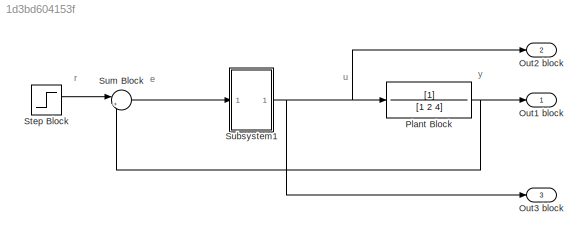
MODEL slx_1d3bd604153f
KIND model
CONFIG AbsTol = auto
CONFIG EnableMultiTasking = off
CONFIG FixedStep = auto
CONFIG MaxStep = auto
CONFIG MinStep = auto
CONFIG RelTol = 1e-3
CONFIG SampleTimeConstraint = Unconstrained
CONFIG SolverName = VariableStepAuto
CONFIG StartTime = 0.0
CONFIG StopTime = 10.0
BLOCK [Outport] Out1 block
BLOCK [Outport] Out2 block
  Port = 2
BLOCK [Outport] Out3 block
  Port = 3
BLOCK [TransferFcn] Plant Block
  Denominator = [1 2 4]
BLOCK [Step] Step Block
  SampleTime = 0
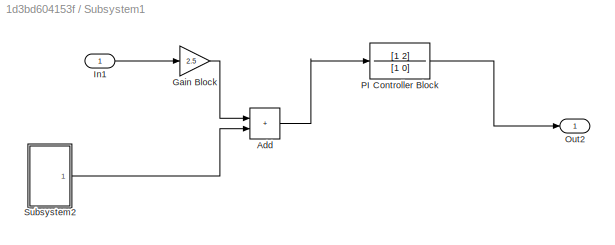
BLOCK [SubSystem] Subsystem1
  Ports = [1, 1]
  RequestExecContextInheritance = off
BLOCK [Sum] Subsystem1/Add
  IconShape = rectangular
  Ports = [2, 1]
BLOCK [Gain] Subsystem1/Gain Block
  Gain = 2.5
BLOCK [Inport] Subsystem1/In1
BLOCK [Outport] Subsystem1/Out2
BLOCK [TransferFcn] Subsystem1/PI Controller Block
  Denominator = [1 0]
  Numerator = [1 2]
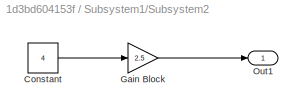
BLOCK [SubSystem] Subsystem1/Subsystem2
  Ports = [0, 1]
  RequestExecContextInheritance = off
BLOCK [Constant] Subsystem1/Subsystem2/Constant
  Value = 4
BLOCK [Gain] Subsystem1/Subsystem2/Gain Block
  Gain = 2.5
BLOCK [Outport] Subsystem1/Subsystem2/Out1
BLOCK [Sum] Sum Block
  Inputs = |+-
  Ports = [2, 1]
ANNOTATION (root): e
ANNOTATION (root): r
ANNOTATION (root): u
ANNOTATION (root): y
NET Plant Block:1 -> Out1 block:1, Sum Block:2
LINE Step Block:1 -> Sum Block:1
LINE Subsystem1/Add:1 -> Subsystem1/PI Controller Block:1
LINE Subsystem1/Gain Block:1 -> Subsystem1/Add:1
LINE Subsystem1/In1:1 -> Subsystem1/Gain Block:1
LINE Subsystem1/PI Controller Block:1 -> Subsystem1/Out2:1
LINE Subsystem1/Subsystem2/Constant:1 -> Subsystem1/Subsystem2/Gain Block:1
LINE Subsystem1/Subsystem2/Gain Block:1 -> Subsystem1/Subsystem2/Out1:1
LINE Subsystem1/Subsystem2:1 -> Subsystem1/Add:2
NET Subsystem1:1 -> Out2 block:1, Out3 block:1, Plant Block:1
LINE Sum Block:1 -> Subsystem1:1
note: NET lines group one-source signal fan-out (src -> all destinations, sorted); 1:1 wires keep LINE
